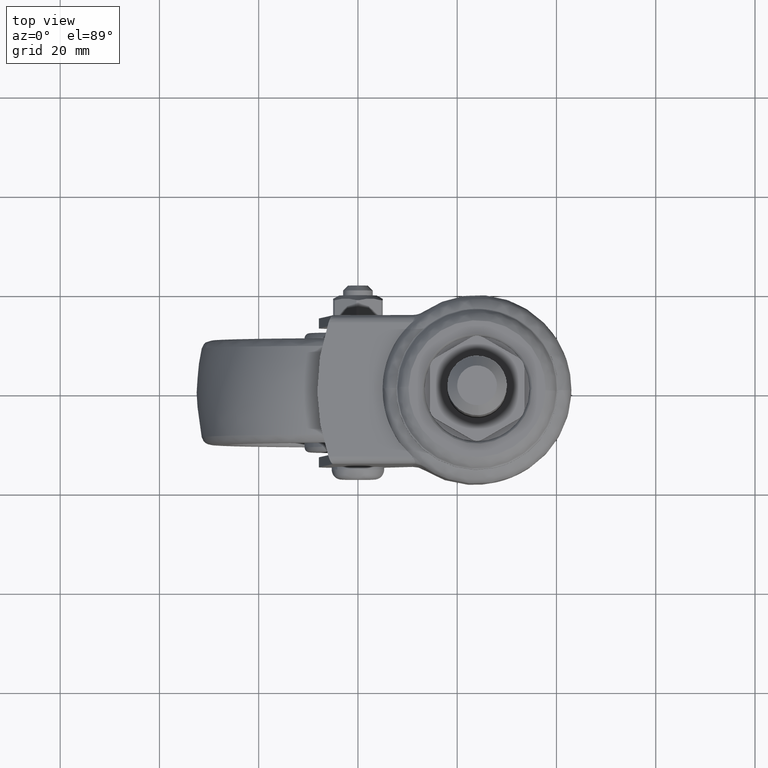
[diagram: clean part render]
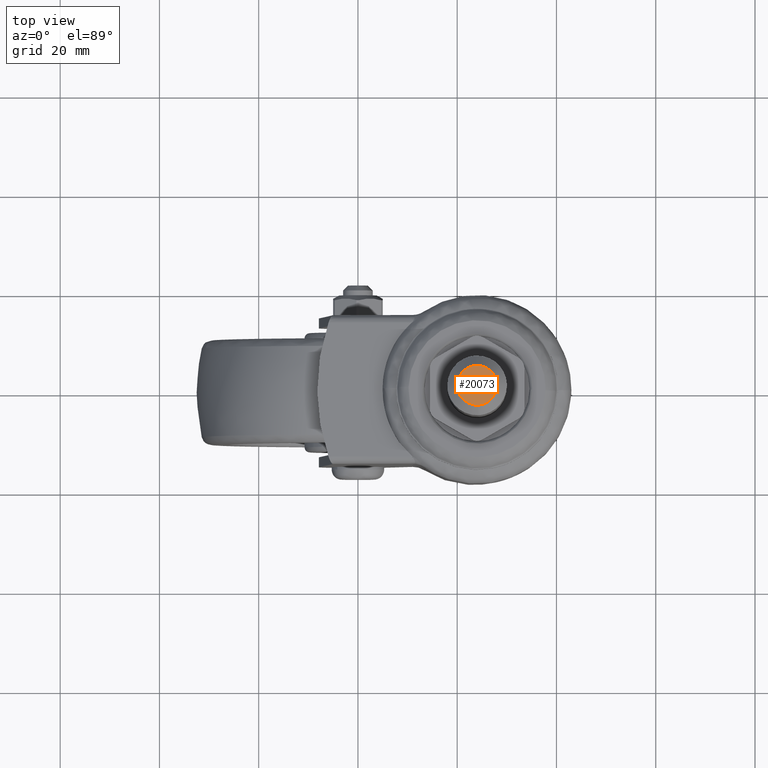
[diagram: same view with one face highlighted and labeled with its STEP entity id]
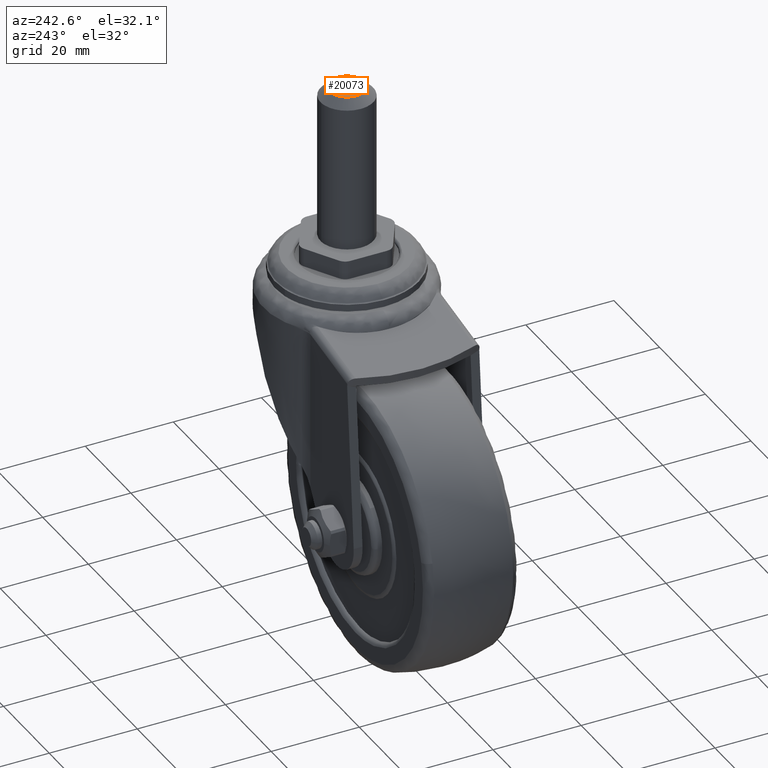
[diagram: same view with one face highlighted and labeled with its STEP entity id]
A machine part, top view. The second image highlights one B-rep face of the part: STEP entity #20073.
A second angle (auxiliary view) of the same face is appended — the face is thin or edge-on in the first view.
In plain terms, the highlighted face is a freeform B-spline surface patch.
Its self-contained STEP definition (entity closure, byte-faithful):
#20002=CARTESIAN_POINT('',(19.600400015505549,-4.399501474138099,87.500004000000104));
#20003=CARTESIAN_POINT('',(28.399600199071170,-4.399501474138099,87.500004000000104));
#20004=CARTESIAN_POINT('',(19.600400015505549,4.399501402612554,87.500004000000104));
#20005=CARTESIAN_POINT('',(28.399600199071170,4.399501402612554,87.500004000000104));
#20006=B_SPLINE_SURFACE_WITH_KNOTS('',1,1,((#20002,#20004),(#20003,#20005)),.UNSPECIFIED.,.F.,.F.,.U.,(2,2),(2,2),(0.0,8.799200183565617),(0.0,8.799002876750652),.UNSPECIFIED.);
#20007=CARTESIAN_POINT('',(24.244194158257159,-3.992539193695616,87.500003999984756));
#20008=VERTEX_POINT('',#20007);
#20009=CARTESIAN_POINT('',(20.0,1.421085E-014,87.500004000000104));
#20010=VERTEX_POINT('',#20009);
#20011=CARTESIAN_POINT('',(24.244194158257159,-3.992539193695616,87.500003999984756));
#20012=CARTESIAN_POINT('',(24.122211053253835,-4.000000000015072,87.500003999984983));
#20013=CARTESIAN_POINT('',(24.000000000000909,-4.000000000014838,87.500003999985211));
#20014=CARTESIAN_POINT('',(20.000000000000437,-4.000000000007185,87.500003999992884));
#20015=CARTESIAN_POINT('',(20.0,1.421085E-014,87.500004000000104));
#20023=(BOUNDED_CURVE()B_SPLINE_CURVE(2,(#20011,#20012,#20013,#20014,#20015),.UNSPECIFIED.,.F.,.U.)B_SPLINE_CURVE_WITH_KNOTS((3,2,3),(0.739332962236921,0.750000000000000,1.0),.UNSPECIFIED.)CURVE()GEOMETRIC_REPRESENTATION_ITEM()RATIONAL_B_SPLINE_CURVE((0.976072041662384,0.987502787897468,1.0,0.707106781186548,1.0))REPRESENTATION_ITEM(''));
#20024=EDGE_CURVE('',#20008,#20010,#20023,.T.);
#20025=ORIENTED_EDGE('',*,*,#20024,.F.);
#20026=CARTESIAN_POINT('',(28.0,1.421085E-014,87.500004000000104));
#20027=VERTEX_POINT('',#20026);
#20028=CARTESIAN_POINT('',(28.0,1.421085E-014,87.500004000000104));
#20029=CARTESIAN_POINT('',(28.000000000000476,-3.762824267520140,87.500003999992430));
#20030=CARTESIAN_POINT('',(24.244194158257159,-3.992539193695616,87.500003999984756));
#20038=(BOUNDED_CURVE()B_SPLINE_CURVE(2,(#20028,#20029,#20030),.UNSPECIFIED.,.F.,.U.)B_SPLINE_CURVE_WITH_KNOTS((3,3),(0.500000000000000,0.739332962236921),.UNSPECIFIED.)CURVE()GEOMETRIC_REPRESENTATION_ITEM()RATIONAL_B_SPLINE_CURVE((1.0,0.719603993289079,0.976072041662384))REPRESENTATION_ITEM(''));
#20039=EDGE_CURVE('',#20027,#20008,#20038,.T.);
#20040=ORIENTED_EDGE('',*,*,#20039,.F.);
#20041=CARTESIAN_POINT('',(23.755805841742848,3.992539193695650,87.500003999984770));
#20042=VERTEX_POINT('',#20041);
#20043=CARTESIAN_POINT('',(23.755805841742852,3.992539193695650,87.500003999984770));
#20044=CARTESIAN_POINT('',(23.877788946746161,4.000000000015105,87.500003999984983));
#20045=CARTESIAN_POINT('',(23.999999999999091,4.000000000014870,87.500003999985211));
#20046=CARTESIAN_POINT('',(27.999999999999559,4.000000000007215,87.500003999992884));
#20047=CARTESIAN_POINT('',(28.0,1.421085E-014,87.500004000000104));
#20055=(BOUNDED_CURVE()B_SPLINE_CURVE(2,(#20043,#20044,#20045,#20046,#20047),.UNSPECIFIED.,.F.,.U.)B_SPLINE_CURVE_WITH_KNOTS((3,2,3),(0.239332962236921,0.250000000000000,0.500000000000000),.UNSPECIFIED.)CURVE()GEOMETRIC_REPRESENTATION_ITEM()RATIONAL_B_SPLINE_CURVE((0.976072041662384,0.987502787897468,1.0,0.707106781186548,1.0))REPRESENTATION_ITEM(''));
#20056=EDGE_CURVE('',#20042,#20027,#20055,.T.);
#20057=ORIENTED_EDGE('',*,*,#20056,.F.);
#20058=CARTESIAN_POINT('',(20.0,1.421085E-014,87.500004000000104));
#20059=CARTESIAN_POINT('',(19.999999999999527,3.762824267520174,87.500003999992430));
#20060=CARTESIAN_POINT('',(23.755805841742845,3.992539193695650,87.500003999984770));
#20068=(BOUNDED_CURVE()B_SPLINE_CURVE(2,(#20058,#20059,#20060),.UNSPECIFIED.,.F.,.U.)B_SPLINE_CURVE_WITH_KNOTS((3,3),(0.0,0.239332962236921),.UNSPECIFIED.)CURVE()GEOMETRIC_REPRESENTATION_ITEM()RATIONAL_B_SPLINE_CURVE((1.0,0.719603993289079,0.976072041662384))REPRESENTATION_ITEM(''));
#20069=EDGE_CURVE('',#20010,#20042,#20068,.T.);
#20070=ORIENTED_EDGE('',*,*,#20069,.F.);
#20071=EDGE_LOOP('',(#20025,#20040,#20057,#20070));
#20072=FACE_OUTER_BOUND('',#20071,.T.);
#20073=ADVANCED_FACE('',(#20072),#20006,.T.);